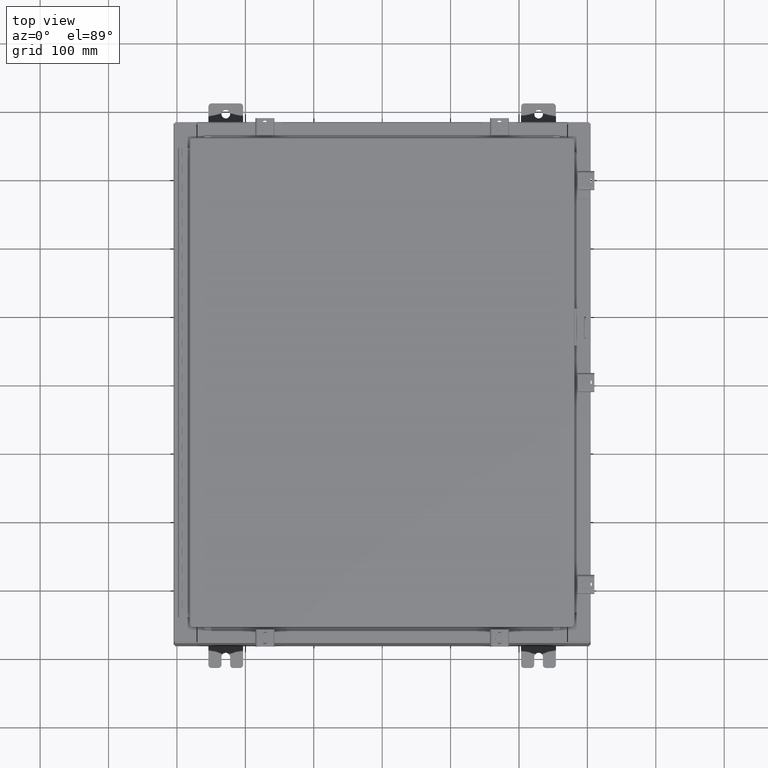
[diagram: clean part render]
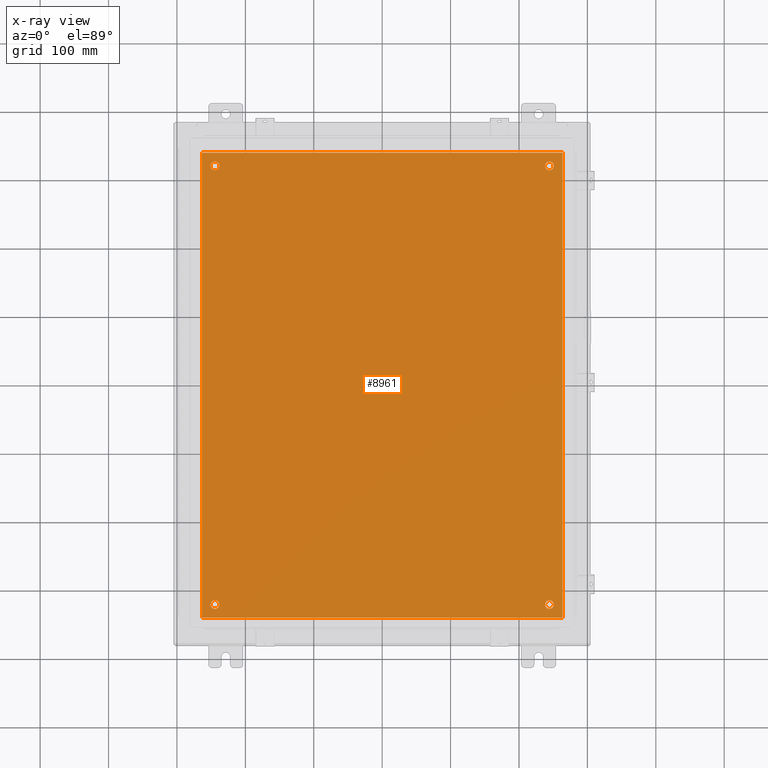
[diagram: x-ray — body ghosted, one internal face saturated and labeled with its STEP entity id]
A machine part, top view, then the same camera in x-ray: the body is ghosted and one INTERNAL B-rep face — a face not visible from any outside direction — is saturated and labeled: STEP entity #8961.
In plain terms, the highlighted planar face has unit normal (0, 0, -1).
Its self-contained STEP definition (entity closure, byte-faithful):
#1005 = CARTESIAN_POINT ( 'NONE',  ( 10.50000000000000400, 13.38299999999999900, -0.1040000000000008600 ) ) ;
#2070 = CARTESIAN_POINT ( 'NONE',  ( 9.375000000000007100, -12.62500000000000000, -0.1040000000000000400 ) ) ;
#2370 = DIRECTION ( 'NONE',  ( -0.0000000000000000000, -0.0000000000000000000, 1.000000000000000000 ) ) ;
#2701 = DIRECTION ( 'NONE',  ( 0.0000000000000000000, 1.000000000000000000, 0.0000000000000000000 ) ) ;
#2753 = EDGE_CURVE ( 'NONE', #29845, #24187, #23267, .T. ) ;
#3136 = AXIS2_PLACEMENT_3D ( 'NONE', #19921, #2370, #22841 ) ;
#3219 = EDGE_CURVE ( 'NONE', #7613, #32002, #36046, .T. ) ;
#3933 = VERTEX_POINT ( 'NONE', #37454 ) ;
#4581 = FACE_BOUND ( 'NONE', #7231, .T. ) ;
#4727 = CIRCLE ( 'NONE', #24326, 0.2500000000000008900 ) ;
#4966 = EDGE_CURVE ( 'NONE', #32002, #7613, #17374, .T. ) ;
#5777 = DIRECTION ( 'NONE',  ( -0.0000000000000000000, -0.0000000000000000000, 1.000000000000000000 ) ) ;
#6161 = VERTEX_POINT ( 'NONE', #15366 ) ;
#6253 = VECTOR ( 'NONE', #24293, 39.37007874015748100 ) ;
#6303 = EDGE_CURVE ( 'NONE', #23825, #3933, #29663, .T. ) ;
#6699 = AXIS2_PLACEMENT_3D ( 'NONE', #23056, #8513, #28956 ) ;
#7105 = EDGE_CURVE ( 'NONE', #15820, #35546, #4727, .T. ) ;
#7231 = EDGE_LOOP ( 'NONE', ( #34928, #12813 ) ) ;
#7333 = DIRECTION ( 'NONE',  ( -0.0000000000000000000, -0.0000000000000000000, 1.000000000000000000 ) ) ;
#7613 = VERTEX_POINT ( 'NONE', #2070 ) ;
#8513 = DIRECTION ( 'NONE',  ( 0.0000000000000000000, 0.0000000000000000000, -1.000000000000000000 ) ) ;
#8660 = CARTESIAN_POINT ( 'NONE',  ( 9.625000000000007100, 12.62500000000000000, -0.1040000000000000400 ) ) ;
#8961 = ADVANCED_FACE ( 'NONE', ( #34768, #27900, #35677, #4581, #26956 ), #28827, .T. ) ;
#10912 = CARTESIAN_POINT ( 'NONE',  ( -9.625000000000007100, 12.62500000000000000, -0.1040000000000000400 ) ) ;
#11087 = EDGE_CURVE ( 'NONE', #35546, #15820, #32143, .T. ) ;
#11107 = CARTESIAN_POINT ( 'NONE',  ( -9.625000000000007100, -12.62500000000000000, -0.1040000000000000400 ) ) ;
#11613 = DIRECTION ( 'NONE',  ( -1.000000000000000000, 0.0000000000000000000, 0.0000000000000000000 ) ) ;
#11903 = CARTESIAN_POINT ( 'NONE',  ( 9.875000000000007100, 12.62500000000000000, -0.1040000000000000400 ) ) ;
#12022 = CARTESIAN_POINT ( 'NONE',  ( -9.875000000000007100, 12.62500000000000000, -0.1040000000000000400 ) ) ;
#12644 = AXIS2_PLACEMENT_3D ( 'NONE', #11107, #31551, #14018 ) ;
#12753 = CIRCLE ( 'NONE', #37336, 0.2499999999999998100 ) ;
#12813 = ORIENTED_EDGE ( 'NONE', *, *, #2753, .T. ) ;
#12948 = VERTEX_POINT ( 'NONE', #25103 ) ;
#13194 = CARTESIAN_POINT ( 'NONE',  ( 9.625000000000007100, 12.62500000000000000, -0.1040000000000000400 ) ) ;
#13393 = LINE ( 'NONE', #20193, #35792 ) ;
#13478 = EDGE_LOOP ( 'NONE', ( #24242, #19812 ) ) ;
#13839 = DIRECTION ( 'NONE',  ( -1.000000000000000000, 0.0000000000000000000, 0.0000000000000000000 ) ) ;
#14018 = DIRECTION ( 'NONE',  ( -1.000000000000000000, 0.0000000000000000000, 0.0000000000000000000 ) ) ;
#14940 = AXIS2_PLACEMENT_3D ( 'NONE', #10912, #31380, #13839 ) ;
#15366 = CARTESIAN_POINT ( 'NONE',  ( 10.38300000000000100, -13.38299999999999700, -0.1040000000000008600 ) ) ;
#15820 = VERTEX_POINT ( 'NONE', #33507 ) ;
#16124 = DIRECTION ( 'NONE',  ( -1.000000000000000000, 0.0000000000000000000, 0.0000000000000000000 ) ) ;
#16589 = EDGE_LOOP ( 'NONE', ( #19773, #17881 ) ) ;
#17374 = CIRCLE ( 'NONE', #36786, 0.2499999999999998100 ) ;
#17465 = CARTESIAN_POINT ( 'NONE',  ( -9.625000000000007100, -12.62500000000000000, -0.1040000000000000400 ) ) ;
#17881 = ORIENTED_EDGE ( 'NONE', *, *, #37607, .T. ) ;
#18140 = EDGE_LOOP ( 'NONE', ( #31401, #29141, #30038, #29002 ) ) ;
#19274 = CARTESIAN_POINT ( 'NONE',  ( -10.38300000000000100, 13.38299999999999700, -0.1040000000000019500 ) ) ;
#19773 = ORIENTED_EDGE ( 'NONE', *, *, #6303, .T. ) ;
#19812 = ORIENTED_EDGE ( 'NONE', *, *, #3219, .T. ) ;
#19921 = CARTESIAN_POINT ( 'NONE',  ( 9.625000000000007100, -12.62500000000000000, -0.1040000000000000400 ) ) ;
#20193 = CARTESIAN_POINT ( 'NONE',  ( -10.50000000000000200, -13.38299999999999900, -0.1040000000000008600 ) ) ;
#20388 = ORIENTED_EDGE ( 'NONE', *, *, #7105, .T. ) ;
#20423 = DIRECTION ( 'NONE',  ( -1.000000000000000000, 0.0000000000000000000, 0.0000000000000000000 ) ) ;
#20636 = AXIS2_PLACEMENT_3D ( 'NONE', #13194, #33652, #16124 ) ;
#22755 = CARTESIAN_POINT ( 'NONE',  ( -10.38300000000000100, 13.38299999999999700, -0.1040000000000019500 ) ) ;
#22841 = DIRECTION ( 'NONE',  ( -1.000000000000000000, 0.0000000000000000000, 0.0000000000000000000 ) ) ;
#22863 = EDGE_LOOP ( 'NONE', ( #20388, #26496 ) ) ;
#23056 = CARTESIAN_POINT ( 'NONE',  ( 0.0000000000000000000, 0.0000000000000000000, -0.1040000000000000400 ) ) ;
#23246 = CARTESIAN_POINT ( 'NONE',  ( -9.625000000000007100, 12.62500000000000000, -0.1040000000000000400 ) ) ;
#23267 = CIRCLE ( 'NONE', #28881, 0.2500000000000008900 ) ;
#23825 = VERTEX_POINT ( 'NONE', #11903 ) ;
#24186 = EDGE_CURVE ( 'NONE', #28985, #33982, #28174, .T. ) ;
#24187 = VERTEX_POINT ( 'NONE', #25143 ) ;
#24242 = ORIENTED_EDGE ( 'NONE', *, *, #4966, .T. ) ;
#24293 = DIRECTION ( 'NONE',  ( -1.000000000000000000, -0.0000000000000000000, -0.0000000000000000000 ) ) ;
#24326 = AXIS2_PLACEMENT_3D ( 'NONE', #17465, #37961, #20423 ) ;
#24834 = CARTESIAN_POINT ( 'NONE',  ( 9.625000000000007100, -12.62500000000000000, -0.1040000000000000400 ) ) ;
#25103 = CARTESIAN_POINT ( 'NONE',  ( 10.38300000000000100, 13.38299999999999700, -0.1040000000000008600 ) ) ;
#25143 = CARTESIAN_POINT ( 'NONE',  ( -9.375000000000007100, 12.62500000000000000, -0.1040000000000000400 ) ) ;
#26200 = DIRECTION ( 'NONE',  ( -1.000000000000000000, 0.0000000000000000000, 0.0000000000000000000 ) ) ;
#26496 = ORIENTED_EDGE ( 'NONE', *, *, #11087, .T. ) ;
#26956 = FACE_OUTER_BOUND ( 'NONE', #18140, .T. ) ;
#27775 = DIRECTION ( 'NONE',  ( -1.000000000000000000, 0.0000000000000000000, 0.0000000000000000000 ) ) ;
#27900 = FACE_BOUND ( 'NONE', #13478, .T. ) ;
#28082 = DIRECTION ( 'NONE',  ( 0.0000000000000000000, -1.000000000000000000, 0.0000000000000000000 ) ) ;
#28174 = LINE ( 'NONE', #19274, #33218 ) ;
#28674 = LINE ( 'NONE', #1005, #6253 ) ;
#28827 = PLANE ( 'NONE',  #6699 ) ;
#28881 = AXIS2_PLACEMENT_3D ( 'NONE', #23246, #5777, #26200 ) ;
#28930 = CARTESIAN_POINT ( 'NONE',  ( 10.38300000000000100, -13.38299999999999700, -0.1040000000000008600 ) ) ;
#28956 = DIRECTION ( 'NONE',  ( -1.000000000000000000, 0.0000000000000000000, -0.0000000000000000000 ) ) ;
#28965 = VECTOR ( 'NONE', #2701, 39.37007874015748100 ) ;
#28985 = VERTEX_POINT ( 'NONE', #22755 ) ;
#29002 = ORIENTED_EDGE ( 'NONE', *, *, #36814, .F. ) ;
#29124 = DIRECTION ( 'NONE',  ( -0.0000000000000000000, -0.0000000000000000000, 1.000000000000000000 ) ) ;
#29141 = ORIENTED_EDGE ( 'NONE', *, *, #24186, .F. ) ;
#29663 = CIRCLE ( 'NONE', #20636, 0.2499999999999998100 ) ;
#29707 = EDGE_CURVE ( 'NONE', #33982, #6161, #13393, .T. ) ;
#29845 = VERTEX_POINT ( 'NONE', #12022 ) ;
#30038 = ORIENTED_EDGE ( 'NONE', *, *, #34624, .F. ) ;
#31227 = CARTESIAN_POINT ( 'NONE',  ( -9.875000000000007100, -12.62500000000000000, -0.1040000000000000400 ) ) ;
#31380 = DIRECTION ( 'NONE',  ( -0.0000000000000000000, -0.0000000000000000000, 1.000000000000000000 ) ) ;
#31401 = ORIENTED_EDGE ( 'NONE', *, *, #29707, .F. ) ;
#31451 = EDGE_CURVE ( 'NONE', #24187, #29845, #33398, .T. ) ;
#31551 = DIRECTION ( 'NONE',  ( -0.0000000000000000000, -0.0000000000000000000, 1.000000000000000000 ) ) ;
#32002 = VERTEX_POINT ( 'NONE', #33577 ) ;
#32143 = CIRCLE ( 'NONE', #12644, 0.2500000000000008900 ) ;
#33193 = CARTESIAN_POINT ( 'NONE',  ( -10.38300000000000100, -13.38299999999999900, -0.1040000000000008600 ) ) ;
#33218 = VECTOR ( 'NONE', #28082, 39.37007874015748100 ) ;
#33398 = CIRCLE ( 'NONE', #14940, 0.2500000000000008900 ) ;
#33507 = CARTESIAN_POINT ( 'NONE',  ( -9.375000000000007100, -12.62500000000000000, -0.1040000000000000400 ) ) ;
#33577 = CARTESIAN_POINT ( 'NONE',  ( 9.875000000000007100, -12.62500000000000000, -0.1040000000000000400 ) ) ;
#33652 = DIRECTION ( 'NONE',  ( -0.0000000000000000000, -0.0000000000000000000, 1.000000000000000000 ) ) ;
#33982 = VERTEX_POINT ( 'NONE', #33193 ) ;
#34624 = EDGE_CURVE ( 'NONE', #12948, #28985, #28674, .T. ) ;
#34768 = FACE_BOUND ( 'NONE', #22863, .T. ) ;
#34928 = ORIENTED_EDGE ( 'NONE', *, *, #31451, .T. ) ;
#35546 = VERTEX_POINT ( 'NONE', #31227 ) ;
#35677 = FACE_BOUND ( 'NONE', #16589, .T. ) ;
#35792 = VECTOR ( 'NONE', #37734, 39.37007874015748100 ) ;
#36046 = CIRCLE ( 'NONE', #3136, 0.2499999999999998100 ) ;
#36741 = LINE ( 'NONE', #28930, #28965 ) ;
#36786 = AXIS2_PLACEMENT_3D ( 'NONE', #24834, #7333, #27775 ) ;
#36814 = EDGE_CURVE ( 'NONE', #6161, #12948, #36741, .T. ) ;
#37336 = AXIS2_PLACEMENT_3D ( 'NONE', #8660, #29124, #11613 ) ;
#37454 = CARTESIAN_POINT ( 'NONE',  ( 9.375000000000007100, 12.62500000000000000, -0.1040000000000000400 ) ) ;
#37607 = EDGE_CURVE ( 'NONE', #3933, #23825, #12753, .T. ) ;
#37734 = DIRECTION ( 'NONE',  ( 1.000000000000000000, -0.0000000000000000000, -0.0000000000000000000 ) ) ;
#37961 = DIRECTION ( 'NONE',  ( -0.0000000000000000000, -0.0000000000000000000, 1.000000000000000000 ) ) ;